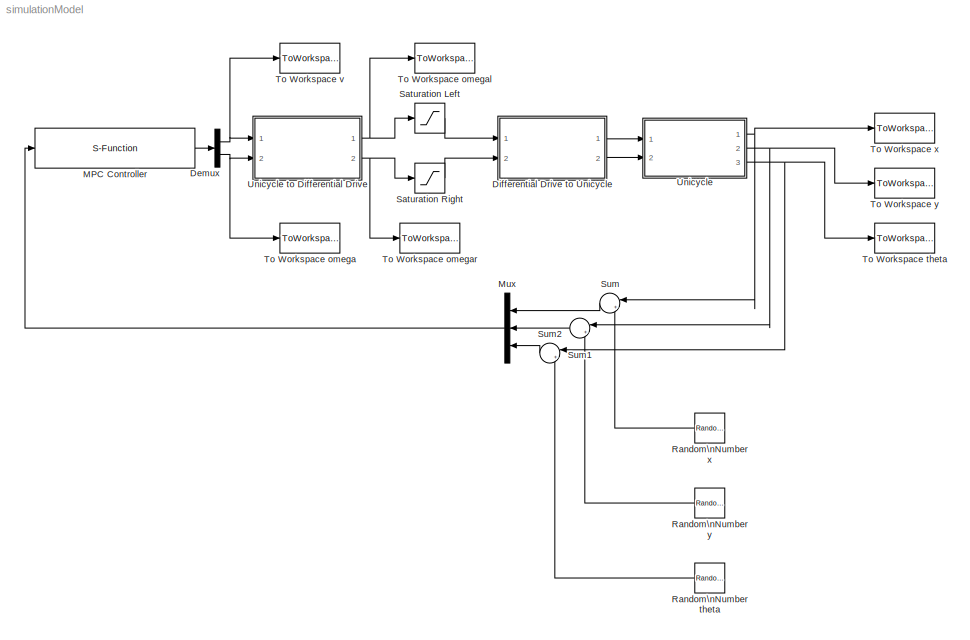
MODEL simulationModel
KIND model
BLOCK [Demux] Demux
  DisplayOption = bar
  Outputs = 2
  Ports = [1, 2]
  SID = 90
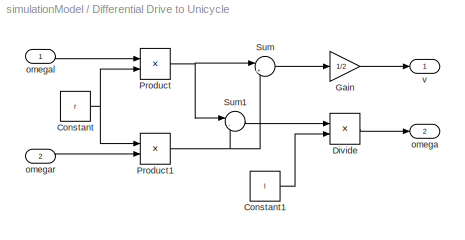
BLOCK [SubSystem] Differential Drive to Unicycle
  FunctionWithSeparateData = off
  MaskHideContents = off
  MinAlgLoopOccurrences = off
  Opaque = off
  Ports = [2, 2]
  PropExecContextOutsideSubsystem = off
  RTWSystemCode = Auto
  RequestExecContextInheritance = off
  SID = 20
BLOCK [Constant] Differential Drive to Unicycle/Constant
  OutDataType = fixdt(1, 16)
  OutScaling = 2^0
  SID = 39
  Value = r
BLOCK [Constant] Differential Drive to Unicycle/Constant1
  OutDataType = fixdt(1, 16)
  OutScaling = 2^0
  SID = 44
  Value = l
BLOCK [Product] Differential Drive to Unicycle/Divide
  InputSameDT = off
  Inputs = */
  OutDataType = fixdt(1, 16)
  OutDataTypeMode = Inherit via internal rule
  OutDataTypeStr = Inherit: Inherit via internal rule
  OutScaling = 2^-10
  Ports = [2, 1]
  RndMeth = Floor
  SID = 43
  SaturateOnIntegerOverflow = off
BLOCK [Gain] Differential Drive to Unicycle/Gain
  Gain = 1/2
  OutDataType = fixdt(1, 16)
  OutDataTypeMode = Inherit via internal rule
  OutDataTypeStr = Inherit: Inherit via internal rule
  OutScaling = 2^0
  ParamDataTypeStr = Inherit: Inherit via internal rule
  ParameterDataType = fixdt(1, 16)
  ParameterDataTypeMode = Inherit via internal rule
  ParameterScaling = 2^0
  SID = 98
  SaturateOnIntegerOverflow = off
BLOCK [Product] Differential Drive to Unicycle/Product
  InputSameDT = off
  OutDataType = fixdt(1, 16)
  OutDataTypeMode = Inherit via internal rule
  OutDataTypeStr = Inherit: Inherit via internal rule
  OutScaling = 2^0
  Ports = [2, 1]
  SID = 37
  SaturateOnIntegerOverflow = off
BLOCK [Product] Differential Drive to Unicycle/Product1
  InputSameDT = off
  OutDataType = fixdt(1, 16)
  OutDataTypeMode = Inherit via internal rule
  OutDataTypeStr = Inherit: Inherit via internal rule
  OutScaling = 2^0
  Ports = [2, 1]
  SID = 38
  SaturateOnIntegerOverflow = off
BLOCK [Sum] Differential Drive to Unicycle/Sum
  IconShape = round
  InputSameDT = off
  Inputs = |++
  OutDataType = fixdt(1, 16)
  OutDataTypeMode = Inherit via internal rule
  OutDataTypeStr = Inherit: Inherit via internal rule
  OutScaling = 2^0
  Ports = [2, 1]
  SID = 40
  SaturateOnIntegerOverflow = off
BLOCK [Sum] Differential Drive to Unicycle/Sum1
  IconShape = round
  InputSameDT = off
  Inputs = |-+
  OutDataType = fixdt(1, 16)
  OutDataTypeMode = Inherit via internal rule
  OutDataTypeStr = Inherit: Inherit via internal rule
  OutScaling = 2^0
  Ports = [2, 1]
  SID = 41
  SaturateOnIntegerOverflow = off
BLOCK [Outport] Differential Drive to Unicycle/omega
  IconDisplay = Port number
  OutDataType = fixdt(1, 16)
  OutScaling = 2^0
  Port = 2
  SID = 35
BLOCK [Inport] Differential Drive to Unicycle/omegal
  IconDisplay = Port number
  OutDataType = fixdt(1, 16)
  OutScaling = 2^0
  SID = 33
BLOCK [Inport] Differential Drive to Unicycle/omegar
  IconDisplay = Port number
  OutDataType = fixdt(1, 16)
  OutScaling = 2^0
  Port = 2
  SID = 36
BLOCK [Outport] Differential Drive to Unicycle/v
  IconDisplay = Port number
  OutDataType = fixdt(1, 16)
  OutScaling = 2^0
  SID = 34
BLOCK [S-Function] MPC Controller
  EnableBusSupport = off
  FunctionName = mpcDifferentialDriveRobot
  Parameters = qr,ur,Qbar,Rbar,S,b,p,n,M,N,T
  Ports = [1, 1]
  SID = 77
BLOCK [Mux] Mux
  DisplayOption = bar
  Inputs = 3
  Ports = [3, 1]
  SID = 65
BLOCK [RandomNumber] Random\nNumber theta
  SID = 103
  SampleTime = T
  Seed = 3
  Variance = thetaStd^2
BLOCK [RandomNumber] Random\nNumber x
  SID = 99
  SampleTime = T
  Seed = 1
  Variance = xStd^2
BLOCK [RandomNumber] Random\nNumber y
  SID = 101
  SampleTime = T
  Seed = 2
  Variance = yStd^2
BLOCK [Saturate] Saturation Left
  LowerLimit = -omegaMax
  OutDataType = fixdt(1, 16)
  OutScaling = 2^0
  SID = 74
  UpperLimit = omegaMax
BLOCK [Saturate] Saturation Right
  LowerLimit = -omegaMax
  OutDataType = fixdt(1, 16)
  OutScaling = 2^0
  SID = 75
  UpperLimit = omegaMax
BLOCK [Sum] Sum
  IconShape = round
  InputSameDT = off
  Inputs = |++
  OutDataType = fixdt(1, 16)
  OutDataTypeMode = Inherit via internal rule
  OutDataTypeStr = Inherit: Inherit via internal rule
  OutScaling = 2^0
  Ports = [2, 1]
  SID = 100
  SaturateOnIntegerOverflow = off
BLOCK [Sum] Sum1
  IconShape = round
  InputSameDT = off
  Inputs = |++
  OutDataType = fixdt(1, 16)
  OutDataTypeMode = Inherit via internal rule
  OutDataTypeStr = Inherit: Inherit via internal rule
  OutScaling = 2^0
  Ports = [2, 1]
  SID = 102
  SaturateOnIntegerOverflow = off
BLOCK [Sum] Sum2
  IconShape = round
  InputSameDT = off
  Inputs = |++
  OutDataType = fixdt(1, 16)
  OutDataTypeMode = Inherit via internal rule
  OutDataTypeStr = Inherit: Inherit via internal rule
  OutScaling = 2^0
  Ports = [2, 1]
  SID = 104
  SaturateOnIntegerOverflow = off
BLOCK [ToWorkspace] To Workspace omega
  MaxDataPoints = inf
  Ports = [1]
  SID = 108
  SampleTime = -1
  SaveFormat = Structure With Time
  VariableName = omega
BLOCK [ToWorkspace] To Workspace omegal
  MaxDataPoints = inf
  Ports = [1]
  SID = 105
  SampleTime = -1
  SaveFormat = Structure With Time
  VariableName = omegal
BLOCK [ToWorkspace] To Workspace omegar
  MaxDataPoints = inf
  Ports = [1]
  SID = 106
  SampleTime = -1
  SaveFormat = Structure With Time
  VariableName = omegar
BLOCK [ToWorkspace] To Workspace theta
  MaxDataPoints = inf
  Ports = [1]
  SID = 16
  SampleTime = -1
  SaveFormat = Structure With Time
  VariableName = theta
BLOCK [ToWorkspace] To Workspace v
  MaxDataPoints = inf
  Ports = [1]
  SID = 107
  SampleTime = -1
  SaveFormat = Structure With Time
  VariableName = v
BLOCK [ToWorkspace] To Workspace x
  MaxDataPoints = inf
  Ports = [1]
  SID = 14
  SampleTime = -1
  SaveFormat = Structure With Time
  VariableName = x
BLOCK [ToWorkspace] To Workspace y
  MaxDataPoints = inf
  Ports = [1]
  SID = 15
  SampleTime = -1
  SaveFormat = Structure With Time
  VariableName = y
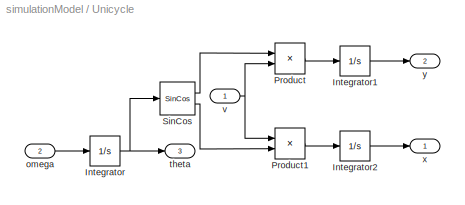
BLOCK [SubSystem] Unicycle
  FunctionWithSeparateData = off
  MaskHideContents = off
  MinAlgLoopOccurrences = off
  Opaque = off
  Ports = [2, 3]
  PropExecContextOutsideSubsystem = off
  RTWSystemCode = Auto
  RequestExecContextInheritance = off
  SID = 1
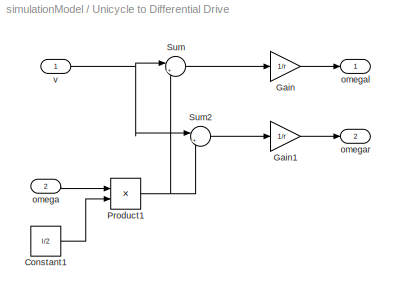
BLOCK [SubSystem] Unicycle to Differential Drive
  FunctionWithSeparateData = off
  MaskHideContents = off
  MinAlgLoopOccurrences = off
  Opaque = off
  Ports = [2, 2]
  PropExecContextOutsideSubsystem = off
  RTWSystemCode = Auto
  RequestExecContextInheritance = off
  SID = 78
BLOCK [Constant] Unicycle to Differential Drive/Constant1
  OutDataType = fixdt(1, 16)
  OutScaling = 2^0
  SID = 82
  Value = l/2
BLOCK [Gain] Unicycle to Differential Drive/Gain
  Gain = 1/r
  OutDataType = fixdt(1, 16)
  OutDataTypeMode = Inherit via internal rule
  OutDataTypeStr = Inherit: Inherit via internal rule
  OutScaling = 2^0
  ParamDataTypeStr = Inherit: Inherit via internal rule
  ParameterDataType = fixdt(1, 16)
  ParameterDataTypeMode = Inherit via internal rule
  ParameterScaling = 2^0
  SID = 94
  SaturateOnIntegerOverflow = off
BLOCK [Gain] Unicycle to Differential Drive/Gain1
  Gain = 1/r
  OutDataType = fixdt(1, 16)
  OutDataTypeMode = Inherit via internal rule
  OutDataTypeStr = Inherit: Inherit via internal rule
  OutScaling = 2^0
  ParamDataTypeStr = Inherit: Inherit via internal rule
  ParameterDataType = fixdt(1, 16)
  ParameterDataTypeMode = Inherit via internal rule
  ParameterScaling = 2^0
  SID = 96
  SaturateOnIntegerOverflow = off
BLOCK [Product] Unicycle to Differential Drive/Product1
  InputSameDT = off
  OutDataType = fixdt(1, 16)
  OutDataTypeMode = Inherit via internal rule
  OutDataTypeStr = Inherit: Inherit via internal rule
  OutScaling = 2^0
  Ports = [2, 1]
  SID = 85
  SaturateOnIntegerOverflow = off
BLOCK [Sum] Unicycle to Differential Drive/Sum
  IconShape = round
  InputSameDT = off
  Inputs = |+-
  OutDataType = fixdt(1, 16)
  OutDataTypeMode = Inherit via internal rule
  OutDataTypeStr = Inherit: Inherit via internal rule
  OutScaling = 2^0
  Ports = [2, 1]
  SID = 86
  SaturateOnIntegerOverflow = off
BLOCK [Sum] Unicycle to Differential Drive/Sum2
  IconShape = round
  InputSameDT = off
  Inputs = |++
  OutDataType = fixdt(1, 16)
  OutDataTypeMode = Inherit via internal rule
  OutDataTypeStr = Inherit: Inherit via internal rule
  OutScaling = 2^0
  Ports = [2, 1]
  SID = 93
  SaturateOnIntegerOverflow = off
BLOCK [Inport] Unicycle to Differential Drive/omega
  IconDisplay = Port number
  OutDataType = fixdt(1, 16)
  OutScaling = 2^0
  Port = 2
  SID = 80
BLOCK [Outport] Unicycle to Differential Drive/omegal
  IconDisplay = Port number
  OutDataType = fixdt(1, 16)
  OutScaling = 2^0
  SID = 88
BLOCK [Outport] Unicycle to Differential Drive/omegar
  IconDisplay = Port number
  OutDataType = fixdt(1, 16)
  OutScaling = 2^0
  Port = 2
  SID = 89
BLOCK [Inport] Unicycle to Differential Drive/v
  IconDisplay = Port number
  OutDataType = fixdt(1, 16)
  OutScaling = 2^0
  SID = 79
BLOCK [Integrator] Unicycle/Integrator
  InitialCondition = theta0
  Ports = [1, 1]
  SID = 7
BLOCK [Integrator] Unicycle/Integrator1
  InitialCondition = y0
  Ports = [1, 1]
  SID = 17
BLOCK [Integrator] Unicycle/Integrator2
  InitialCondition = x0
  Ports = [1, 1]
  SID = 18
BLOCK [Product] Unicycle/Product
  InputSameDT = off
  OutDataType = fixdt(1, 16)
  OutDataTypeMode = Inherit via internal rule
  OutDataTypeStr = Inherit: Inherit via internal rule
  OutScaling = 2^0
  Ports = [2, 1]
  SID = 10
  SaturateOnIntegerOverflow = off
BLOCK [Product] Unicycle/Product1
  InputSameDT = off
  OutDataType = fixdt(1, 16)
  OutDataTypeMode = Inherit via internal rule
  OutDataTypeStr = Inherit: Inherit via internal rule
  OutScaling = 2^0
  Ports = [2, 1]
  SID = 11
  SaturateOnIntegerOverflow = off
BLOCK [Reference] Unicycle/SinCos  REF=aerolibutil/SinCos
  FunctionWithSeparateData = off
  Ports = [1, 2]
  RTWMemSecDataConstants = Inherit from model
  RTWMemSecDataInternal = Inherit from model
  RTWMemSecDataParameters = Inherit from model
  RTWMemSecFuncExecute = Inherit from model
  RTWMemSecFuncInitTerm = Inherit from model
  SID = 9
  ShowPortLabels = FromPortIcon
  SourceBlock = aerolibutil/SinCos
  SourceType = SinCos
  SystemSampleTime = -1
BLOCK [Inport] Unicycle/omega
  IconDisplay = Port number
  OutDataType = fixdt(1, 16)
  OutScaling = 2^0
  Port = 2
  SID = 4
BLOCK [Outport] Unicycle/theta
  IconDisplay = Port number
  OutDataType = fixdt(1, 16)
  OutScaling = 2^0
  Port = 3
  SID = 6
BLOCK [Inport] Unicycle/v
  IconDisplay = Port number
  OutDataType = fixdt(1, 16)
  OutScaling = 2^0
  SID = 2
BLOCK [Outport] Unicycle/x
  IconDisplay = Port number
  OutDataType = fixdt(1, 16)
  OutScaling = 2^0
  SID = 3
BLOCK [Outport] Unicycle/y
  IconDisplay = Port number
  OutDataType = fixdt(1, 16)
  OutScaling = 2^0
  Port = 2
  SID = 5
NET Demux:1 -> To Workspace v:1, Unicycle to Differential Drive:1
NET Demux:2 -> To Workspace omega:1, Unicycle to Differential Drive:2
LINE Differential Drive to Unicycle/Constant1:1 -> Differential Drive to Unicycle/Divide:2
NET Differential Drive to Unicycle/Constant:1 -> Differential Drive to Unicycle/Product1:1, Differential Drive to Unicycle/Product:2
LINE Differential Drive to Unicycle/Divide:1 -> Differential Drive to Unicycle/omega:1
LINE Differential Drive to Unicycle/Gain:1 -> Differential Drive to Unicycle/v:1
NET Differential Drive to Unicycle/Product1:1 -> Differential Drive to Unicycle/Sum1:2, Differential Drive to Unicycle/Sum:2
NET Differential Drive to Unicycle/Product:1 -> Differential Drive to Unicycle/Sum1:1, Differential Drive to Unicycle/Sum:1
LINE Differential Drive to Unicycle/Sum1:1 -> Differential Drive to Unicycle/Divide:1
LINE Differential Drive to Unicycle/Sum:1 -> Differential Drive to Unicycle/Gain:1
LINE Differential Drive to Unicycle/omegal:1 -> Differential Drive to Unicycle/Product:1
LINE Differential Drive to Unicycle/omegar:1 -> Differential Drive to Unicycle/Product1:2
LINE Differential Drive to Unicycle:1 -> Unicycle:1
LINE Differential Drive to Unicycle:2 -> Unicycle:2
LINE MPC Controller:1 -> Demux:1
LINE Mux:1 -> MPC Controller:1
LINE Random\nNumber theta:1 -> Sum2:2
LINE Random\nNumber x:1 -> Sum:2
LINE Random\nNumber y:1 -> Sum1:2
LINE Saturation Left:1 -> Differential Drive to Unicycle:1
LINE Saturation Right:1 -> Differential Drive to Unicycle:2
LINE Sum1:1 -> Mux:2
LINE Sum2:1 -> Mux:3
LINE Sum:1 -> Mux:1
LINE Unicycle to Differential Drive/Constant1:1 -> Unicycle to Differential Drive/Product1:2
LINE Unicycle to Differential Drive/Gain1:1 -> Unicycle to Differential Drive/omegar:1
LINE Unicycle to Differential Drive/Gain:1 -> Unicycle to Differential Drive/omegal:1
NET Unicycle to Differential Drive/Product1:1 -> Unicycle to Differential Drive/Sum2:2, Unicycle to Differential Drive/Sum:2
LINE Unicycle to Differential Drive/Sum2:1 -> Unicycle to Differential Drive/Gain1:1
LINE Unicycle to Differential Drive/Sum:1 -> Unicycle to Differential Drive/Gain:1
LINE Unicycle to Differential Drive/omega:1 -> Unicycle to Differential Drive/Product1:1
NET Unicycle to Differential Drive/v:1 -> Unicycle to Differential Drive/Sum2:1, Unicycle to Differential Drive/Sum:1
NET Unicycle to Differential Drive:1 -> Saturation Left:1, To Workspace omegal:1
NET Unicycle to Differential Drive:2 -> Saturation Right:1, To Workspace omegar:1
LINE Unicycle/Integrator1:1 -> Unicycle/y:1
LINE Unicycle/Integrator2:1 -> Unicycle/x:1
NET Unicycle/Integrator:1 -> Unicycle/SinCos:1, Unicycle/theta:1
LINE Unicycle/Product1:1 -> Unicycle/Integrator2:1
LINE Unicycle/Product:1 -> Unicycle/Integrator1:1
LINE Unicycle/SinCos:1 -> Unicycle/Product:1
LINE Unicycle/SinCos:2 -> Unicycle/Product1:2
LINE Unicycle/omega:1 -> Unicycle/Integrator:1
NET Unicycle/v:1 -> Unicycle/Product1:1, Unicycle/Product:2
NET Unicycle:1 -> Sum:1, To Workspace x:1
NET Unicycle:2 -> Sum1:1, To Workspace y:1
NET Unicycle:3 -> Sum2:1, To Workspace theta:1
note: NET lines group one-source signal fan-out (src -> all destinations, sorted); 1:1 wires keep LINE
